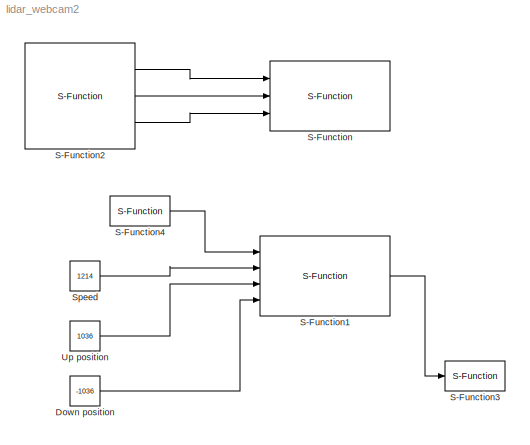
MODEL lidar_webcam2
KIND model
BLOCK [Constant] Down position
  OutDataType = fixdt(1, 16)
  OutScaling = 2^0
  Value = -1036
BLOCK [S-Function] S-Function
  EnableBusSupport = off
  FunctionName = videoExport_v2
  Ports = [3]
BLOCK [S-Function] S-Function1
  EnableBusSupport = off
  FunctionName = lidar_zero_test9
  Ports = [4, 1]
BLOCK [S-Function] S-Function2
  EnableBusSupport = off
  FunctionName = WebcamTest
  Ports = [0, 3]
BLOCK [S-Function] S-Function3
  EnableBusSupport = off
  FunctionName = lidarExport
  Ports = [1]
BLOCK [S-Function] S-Function4
  EnableBusSupport = off
  FunctionName = pot_reader4
  Ports = [0, 1]
BLOCK [Constant] Speed
  OutDataType = fixdt(1, 16)
  OutScaling = 2^0
  Value = 1214
BLOCK [Constant] Up position
  OutDataType = fixdt(1, 16)
  OutScaling = 2^0
  Value = 1036
LINE Down position:1 -> S-Function1:4
LINE S-Function1:1 -> S-Function3:1
LINE S-Function2:1 -> S-Function:1
LINE S-Function2:2 -> S-Function:2
LINE S-Function2:3 -> S-Function:3
LINE S-Function4:1 -> S-Function1:1
LINE Speed:1 -> S-Function1:2
LINE Up position:1 -> S-Function1:3
